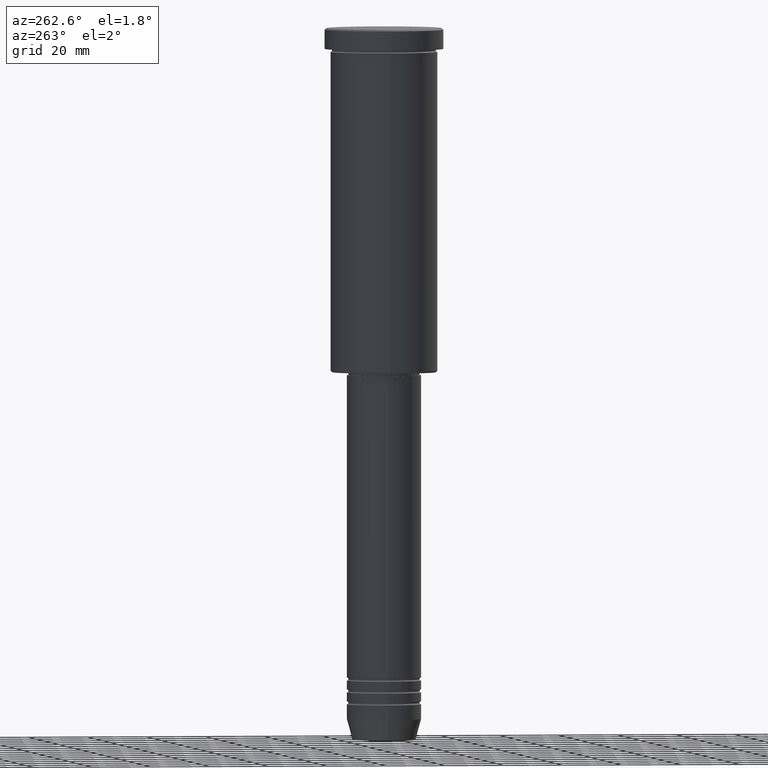
[diagram: clean part render]
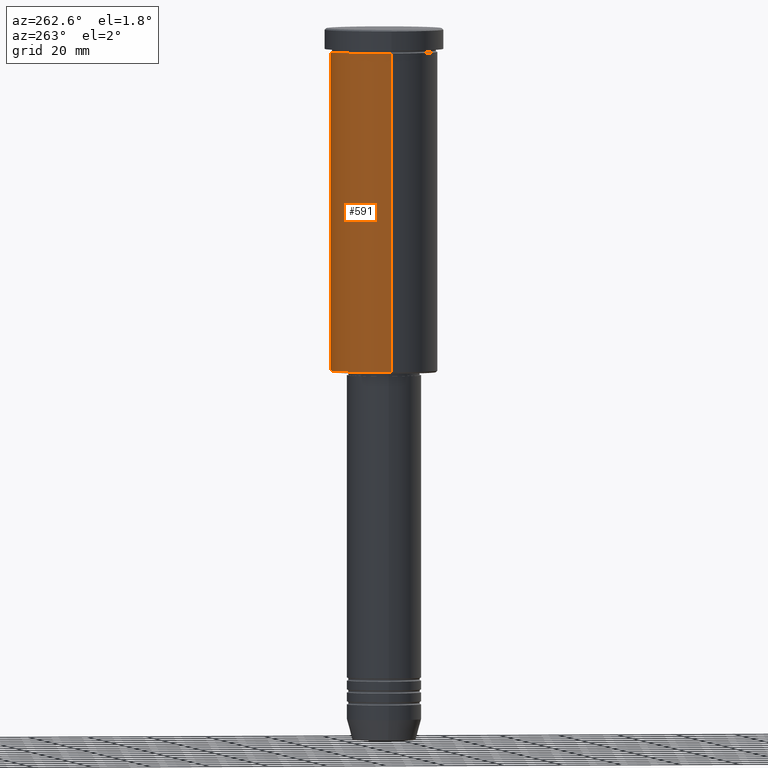
[diagram: same view with one face highlighted and labeled with its STEP entity id]
A machine part, auxiliary view. The second image highlights one B-rep face of the part: STEP entity #591.
In plain terms, the highlighted cylindrical surface (partial cylindrical patch) has radius 18 mm, axis along (-0, -0, 1).
Its self-contained STEP definition (entity closure, byte-faithful):
#24 = VECTOR ( 'NONE', #1089, 1000.000000000000000 ) ;
#91 = FACE_OUTER_BOUND ( 'NONE', #96, .T. ) ;
#96 = EDGE_LOOP ( 'NONE', ( #1054, #160, #388, #380 ) ) ;
#99 = AXIS2_PLACEMENT_3D ( 'NONE', #371, #655, #187 ) ;
#160 = ORIENTED_EDGE ( 'NONE', *, *, #703, .T. ) ;
#174 = CARTESIAN_POINT ( 'NONE',  ( 0.000000000000000000, 0.000000000000000000, -7.999999999999996447 ) ) ;
#187 = DIRECTION ( 'NONE',  ( -1.000000000000000000, 0.000000000000000000, 0.000000000000000000 ) ) ;
#190 = CARTESIAN_POINT ( 'NONE',  ( 18.00000000000000000, 0.000000000000000000, 0.000000000000000000 ) ) ;
#260 = DIRECTION ( 'NONE',  ( -0.000000000000000000, -0.000000000000000000, 1.000000000000000000 ) ) ;
#265 = AXIS2_PLACEMENT_3D ( 'NONE', #739, #1094, #277 ) ;
#277 = DIRECTION ( 'NONE',  ( 1.000000000000000000, 0.000000000000000000, 0.000000000000000000 ) ) ;
#278 = LINE ( 'NONE', #190, #24 ) ;
#291 = CARTESIAN_POINT ( 'NONE',  ( -18.00000000000000000, 2.204364238465235428E-15, -115.5000000000000000 ) ) ;
#308 = EDGE_CURVE ( 'NONE', #349, #713, #278, .T. ) ;
#349 = VERTEX_POINT ( 'NONE', #772 ) ;
#354 = DIRECTION ( 'NONE',  ( 1.000000000000000000, 0.000000000000000000, 0.000000000000000000 ) ) ;
#362 = CYLINDRICAL_SURFACE ( 'NONE', #265, 18.00000000000000000 ) ;
#371 = CARTESIAN_POINT ( 'NONE',  ( 0.000000000000000000, 0.000000000000000000, -115.5000000000000000 ) ) ;
#380 = ORIENTED_EDGE ( 'NONE', *, *, #308, .F. ) ;
#383 = CIRCLE ( 'NONE', #99, 18.00000000000000000 ) ;
#388 = ORIENTED_EDGE ( 'NONE', *, *, #907, .F. ) ;
#414 = CARTESIAN_POINT ( 'NONE',  ( -18.00000000000000000, 2.204364238465235428E-15, -7.999999999999996447 ) ) ;
#436 = VERTEX_POINT ( 'NONE', #414 ) ;
#468 = CIRCLE ( 'NONE', #924, 18.00000000000000000 ) ;
#484 = VECTOR ( 'NONE', #672, 1000.000000000000000 ) ;
#583 = CARTESIAN_POINT ( 'NONE',  ( 18.00000000000000000, 0.000000000000000000, -7.999999999999996447 ) ) ;
#591 = ADVANCED_FACE ( 'NONE', ( #91 ), #362, .T. ) ;
#612 = EDGE_CURVE ( 'NONE', #349, #1121, #383, .T. ) ;
#655 = DIRECTION ( 'NONE',  ( -0.000000000000000000, -0.000000000000000000, 1.000000000000000000 ) ) ;
#661 = LINE ( 'NONE', #861, #484 ) ;
#672 = DIRECTION ( 'NONE',  ( -0.000000000000000000, -0.000000000000000000, 1.000000000000000000 ) ) ;
#703 = EDGE_CURVE ( 'NONE', #1121, #436, #661, .T. ) ;
#713 = VERTEX_POINT ( 'NONE', #583 ) ;
#739 = CARTESIAN_POINT ( 'NONE',  ( 0.000000000000000000, 0.000000000000000000, 0.000000000000000000 ) ) ;
#772 = CARTESIAN_POINT ( 'NONE',  ( 18.00000000000000000, 0.000000000000000000, -115.5000000000000000 ) ) ;
#861 = CARTESIAN_POINT ( 'NONE',  ( -18.00000000000000000, 2.204364238465235428E-15, 0.000000000000000000 ) ) ;
#907 = EDGE_CURVE ( 'NONE', #713, #436, #468, .T. ) ;
#924 = AXIS2_PLACEMENT_3D ( 'NONE', #174, #260, #354 ) ;
#1054 = ORIENTED_EDGE ( 'NONE', *, *, #612, .T. ) ;
#1089 = DIRECTION ( 'NONE',  ( -0.000000000000000000, -0.000000000000000000, 1.000000000000000000 ) ) ;
#1094 = DIRECTION ( 'NONE',  ( -0.000000000000000000, -0.000000000000000000, 1.000000000000000000 ) ) ;
#1121 = VERTEX_POINT ( 'NONE', #291 ) ;